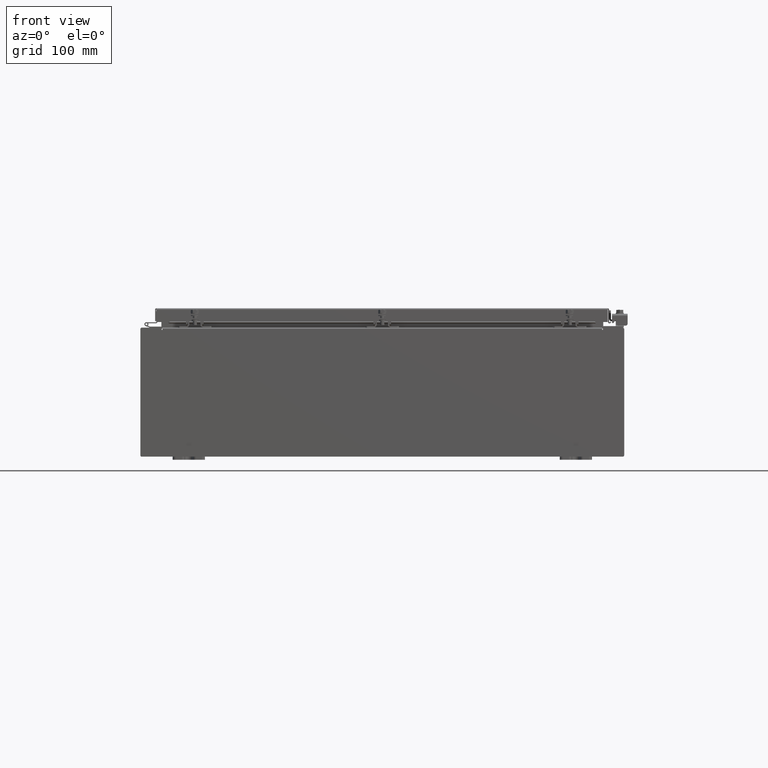
[diagram: clean part render]
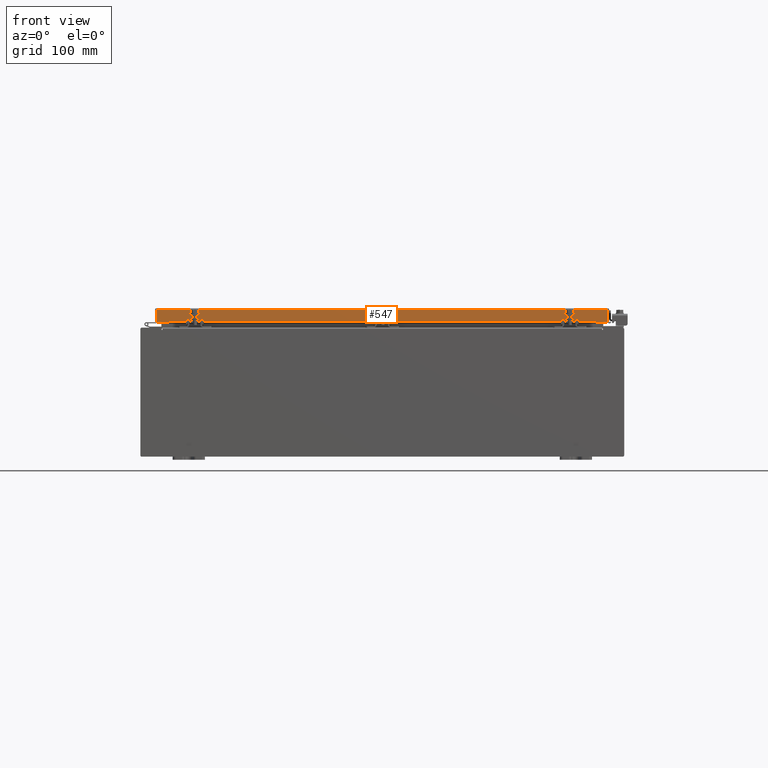
[diagram: same view with one face highlighted and labeled with its STEP entity id]
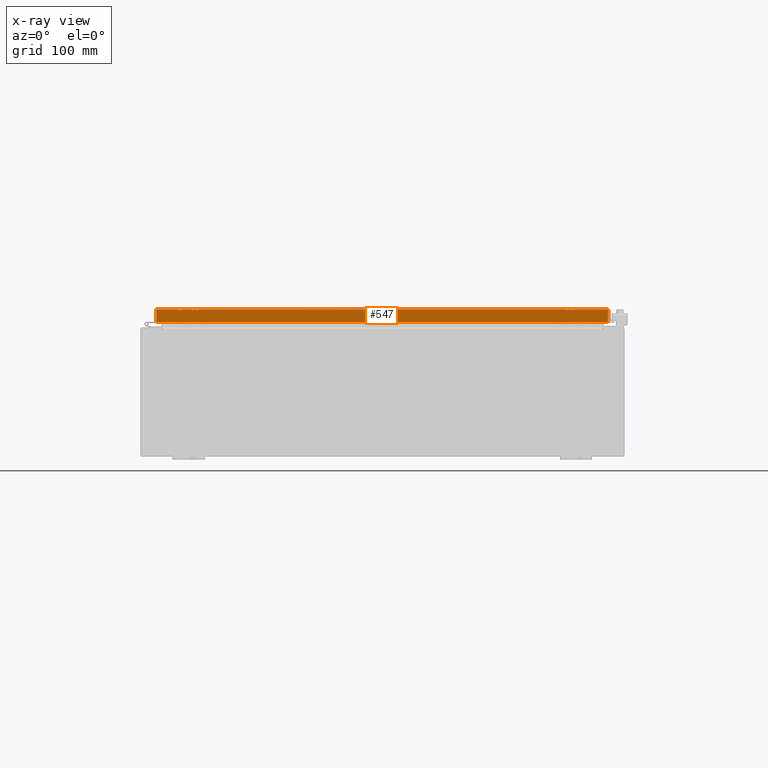
[diagram: x-ray of the same camera — body ghosted, the highlighted face saturated]
A machine part, front view. The second image highlights one B-rep face of the part: STEP entity #547.
The next image is the same camera in x-ray: the body ghosted, the highlighted face saturated — about 0% of this face is hidden behind the body in this view.
In plain terms, the highlighted planar face has unit normal (0, 1, -0).
Its self-contained STEP definition (entity closure, byte-faithful):
#189 = PLANE ( 'NONE',  #14143 ) ;
#547 = ADVANCED_FACE ( 'NONE', ( #1604 ), #189, .F. ) ;
#622 = EDGE_CURVE ( 'NONE', #27648, #18397, #29953, .T. ) ;
#784 = VECTOR ( 'NONE', #5531, 39.37007874015748100 ) ;
#1604 = FACE_OUTER_BOUND ( 'NONE', #9384, .T. ) ;
#2475 = CARTESIAN_POINT ( 'NONE',  ( 13.98915786437627100, -14.09400000000000500, -0.07470000000000015500 ) ) ;
#2910 = CARTESIAN_POINT ( 'NONE',  ( -13.98915786437626900, -14.09400000000000300, -0.08769999999999808500 ) ) ;
#3244 = DIRECTION ( 'NONE',  ( 7.762034361881662700E-017, 1.000000000000000000, -2.818880942772360100E-015 ) ) ;
#3600 = VERTEX_POINT ( 'NONE', #34855 ) ;
#5266 = DIRECTION ( 'NONE',  ( -1.000000000000000000, 0.0000000000000000000, 0.0000000000000000000 ) ) ;
#5531 = DIRECTION ( 'NONE',  ( 0.0000000000000000000, -2.818880942772360100E-015, -1.000000000000000000 ) ) ;
#5802 = VECTOR ( 'NONE', #17261, 39.37007874015748100 ) ;
#6973 = VECTOR ( 'NONE', #11153, 39.37007874015748100 ) ;
#8401 = ORIENTED_EDGE ( 'NONE', *, *, #9139, .T. ) ;
#9139 = EDGE_CURVE ( 'NONE', #37781, #13020, #29905, .T. ) ;
#9384 = EDGE_LOOP ( 'NONE', ( #23045, #8401, #17333, #34922, #38636, #23226 ) ) ;
#9740 = EDGE_CURVE ( 'NONE', #3600, #13020, #22061, .T. ) ;
#9762 = EDGE_CURVE ( 'NONE', #37781, #11508, #13118, .T. ) ;
#9768 = LINE ( 'NONE', #2475, #784 ) ;
#11153 = DIRECTION ( 'NONE',  ( 1.000000000000000000, -7.762034361881684800E-017, -7.762034361881697200E-017 ) ) ;
#11204 = CARTESIAN_POINT ( 'NONE',  ( -13.98915786437626700, -14.09400000000000300, 4.043135030623109600E-014 ) ) ;
#11508 = VERTEX_POINT ( 'NONE', #31470 ) ;
#13020 = VERTEX_POINT ( 'NONE', #22048 ) ;
#13118 = LINE ( 'NONE', #29241, #6973 ) ;
#14143 = AXIS2_PLACEMENT_3D ( 'NONE', #27278, #3244, #24353 ) ;
#17261 = DIRECTION ( 'NONE',  ( 0.0000000000000000000, -2.818880942772360100E-015, -1.000000000000000000 ) ) ;
#17333 = ORIENTED_EDGE ( 'NONE', *, *, #9740, .F. ) ;
#18397 = VERTEX_POINT ( 'NONE', #33240 ) ;
#19579 = VECTOR ( 'NONE', #5266, 39.37007874015748100 ) ;
#19964 = CARTESIAN_POINT ( 'NONE',  ( 14.07800000000000300, -14.09400000000000800, -0.8499999999999999800 ) ) ;
#21459 = LINE ( 'NONE', #23193, #19579 ) ;
#21891 = VECTOR ( 'NONE', #33869, 39.37007874015748100 ) ;
#22048 = CARTESIAN_POINT ( 'NONE',  ( -13.98915786437626900, -14.09400000000000500, -0.8499999999999966500 ) ) ;
#22061 = LINE ( 'NONE', #19964, #37157 ) ;
#23045 = ORIENTED_EDGE ( 'NONE', *, *, #9762, .F. ) ;
#23193 = CARTESIAN_POINT ( 'NONE',  ( 13.23915786437626900, -14.09400000000000100, -0.8500000000000010900 ) ) ;
#23226 = ORIENTED_EDGE ( 'NONE', *, *, #24008, .F. ) ;
#24008 = EDGE_CURVE ( 'NONE', #11508, #27648, #9768, .T. ) ;
#24353 = DIRECTION ( 'NONE',  ( 0.0000000000000000000, 2.818880942772360100E-015, 1.000000000000000000 ) ) ;
#26034 = CARTESIAN_POINT ( 'NONE',  ( 13.98915786437627100, -14.09400000000000800, -0.8499999999999999800 ) ) ;
#27278 = CARTESIAN_POINT ( 'NONE',  ( -1.094873453710755500E-015, -14.09400000000000300, 4.043135030623109600E-014 ) ) ;
#27648 = VERTEX_POINT ( 'NONE', #26034 ) ;
#29241 = CARTESIAN_POINT ( 'NONE',  ( 14.07800000000000300, -14.09400000000000500, -0.08770000000000026400 ) ) ;
#29905 = LINE ( 'NONE', #11204, #5802 ) ;
#29953 = LINE ( 'NONE', #30805, #21891 ) ;
#30805 = CARTESIAN_POINT ( 'NONE',  ( 14.07800000000000300, -14.09400000000000800, -0.8499999999999999800 ) ) ;
#31470 = CARTESIAN_POINT ( 'NONE',  ( 13.98915786437624000, -14.09400000000000500, -0.08769999999999918100 ) ) ;
#32140 = DIRECTION ( 'NONE',  ( -1.000000000000000000, 7.762034361881697200E-017, 1.212817869044015600E-016 ) ) ;
#33240 = CARTESIAN_POINT ( 'NONE',  ( 13.23915786437626900, -14.09400000000000100, -0.8500000000000010900 ) ) ;
#33869 = DIRECTION ( 'NONE',  ( -1.000000000000000000, 7.762034361881697200E-017, 1.212817869044015600E-016 ) ) ;
#34855 = CARTESIAN_POINT ( 'NONE',  ( -13.23915786437626900, -14.09400000000000100, -0.8500000000000010900 ) ) ;
#34922 = ORIENTED_EDGE ( 'NONE', *, *, #38254, .F. ) ;
#37157 = VECTOR ( 'NONE', #32140, 39.37007874015748100 ) ;
#37781 = VERTEX_POINT ( 'NONE', #2910 ) ;
#38254 = EDGE_CURVE ( 'NONE', #18397, #3600, #21459, .T. ) ;
#38636 = ORIENTED_EDGE ( 'NONE', *, *, #622, .F. ) ;